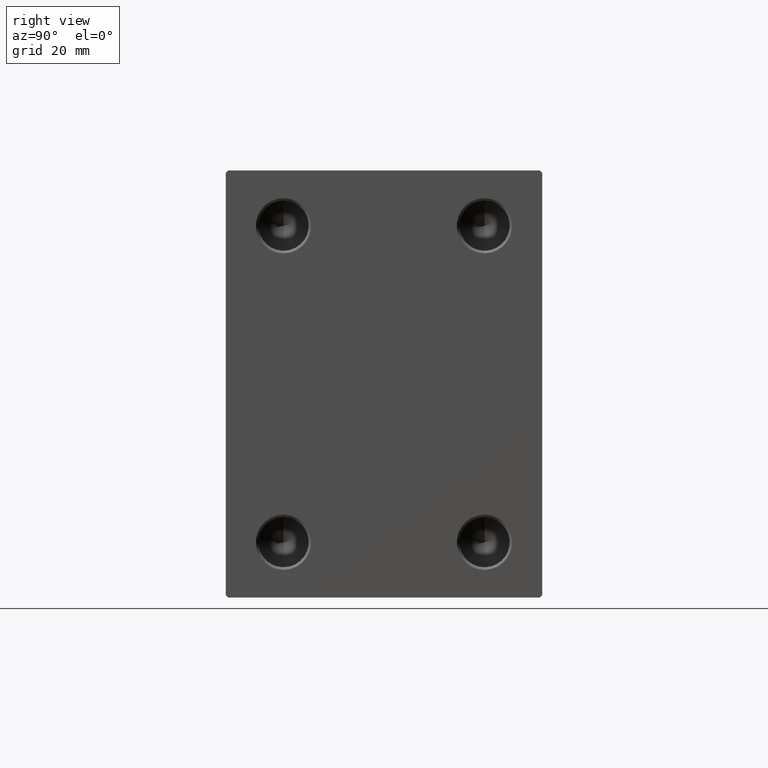
[diagram: clean part render]
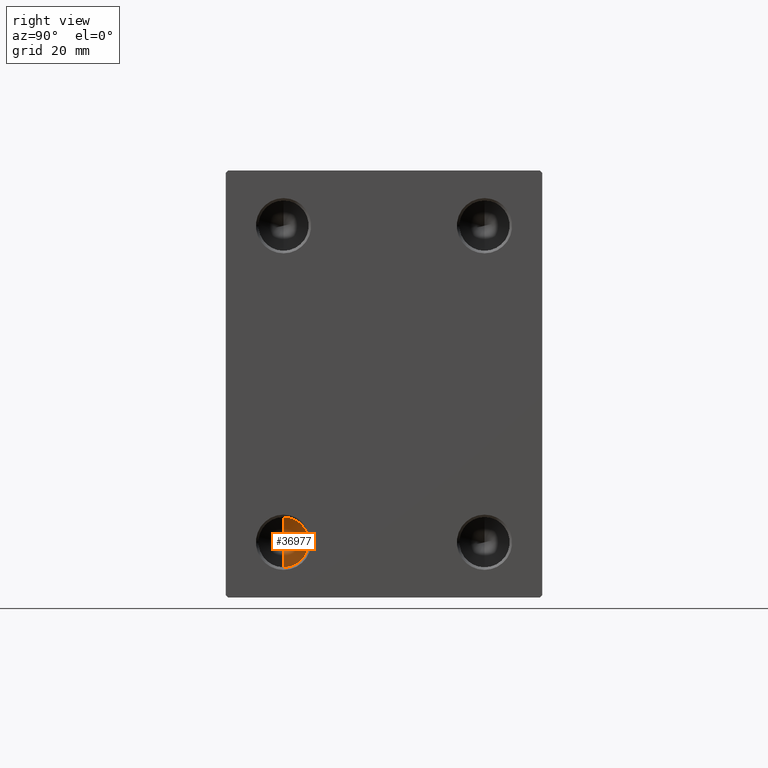
[diagram: same view with one face highlighted and labeled with its STEP entity id]
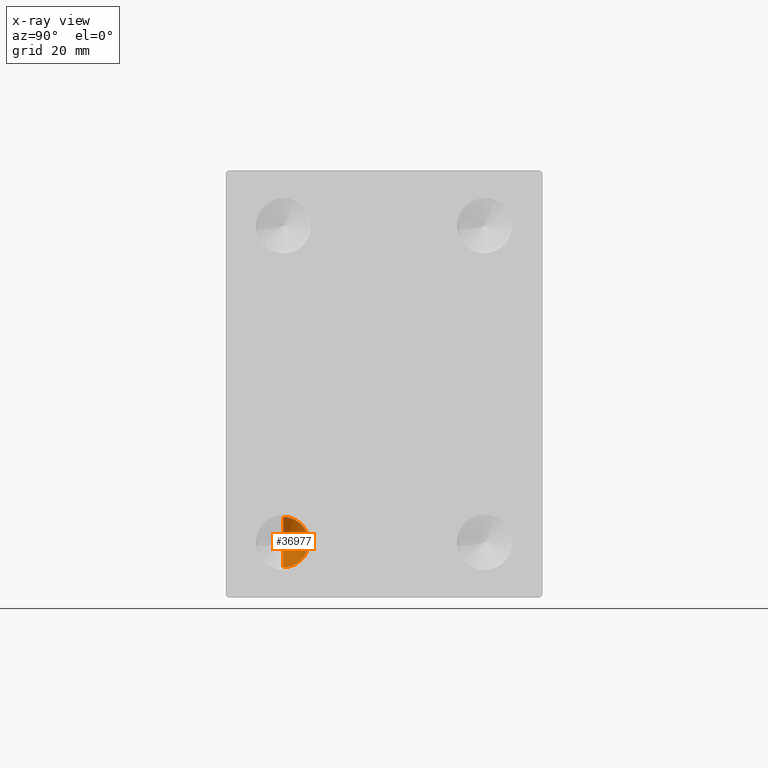
[diagram: x-ray of the same camera — body ghosted, the highlighted face saturated]
A machine part, right view. The second image highlights one B-rep face of the part: STEP entity #36977.
The next image is the same camera in x-ray: the body ghosted, the highlighted face saturated — about 0% of this face is hidden behind the body in this view.
In plain terms, the highlighted conical surface has half-angle 59 deg.
Its self-contained STEP definition (entity closure, byte-faithful):
#2299 = VERTEX_POINT ( 'NONE', #10956 ) ;
#3446 = VECTOR ( 'NONE', #11976, 1000.000000000000000 ) ;
#5605 = DIRECTION ( 'NONE',  ( 0.000000000000000000, 0.000000000000000000, 1.000000000000000000 ) ) ;
#5815 = DIRECTION ( 'NONE',  ( 0.5150380749100552658, -1.049727191138617833E-16, -0.8571673007021116675 ) ) ;
#7114 = EDGE_CURVE ( 'NONE', #2299, #17781, #22857, .T. ) ;
#10956 = CARTESIAN_POINT ( 'NONE',  ( 64.99569690486218576, -20.00000000000001066, -31.50000000000000000 ) ) ;
#11045 = CIRCLE ( 'NONE', #21069, 4.999999999999997335 ) ;
#11976 = DIRECTION ( 'NONE',  ( 0.5150380749100552658, 0.000000000000000000, 0.8571673007021116675 ) ) ;
#16519 = FACE_OUTER_BOUND ( 'NONE', #22805, .T. ) ;
#17781 = VERTEX_POINT ( 'NONE', #23586 ) ;
#19506 = CARTESIAN_POINT ( 'NONE',  ( 67.99999999999998579, -20.00000000000000355, -31.50000000000000000 ) ) ;
#19874 = ORIENTED_EDGE ( 'NONE', *, *, #26315, .F. ) ;
#20099 = CARTESIAN_POINT ( 'NONE',  ( 67.99999999999998579, -20.00000000000000355, -31.50000000000000000 ) ) ;
#21069 = AXIS2_PLACEMENT_3D ( 'NONE', #19506, #22864, #5605 ) ;
#22805 = EDGE_LOOP ( 'NONE', ( #30098, #36284, #19874 ) ) ;
#22857 = LINE ( 'NONE', #36547, #42161 ) ;
#22864 = DIRECTION ( 'NONE',  ( -1.000000000000000000, 0.000000000000000000, 0.000000000000000000 ) ) ;
#23339 = CONICAL_SURFACE ( 'NONE', #29064, 4.999999999999997335, 1.029744258676653201 ) ;
#23586 = CARTESIAN_POINT ( 'NONE',  ( 67.99999999999998579, -20.00000000000000355, -36.50000000000000000 ) ) ;
#23687 = DIRECTION ( 'NONE',  ( 0.000000000000000000, 0.000000000000000000, 1.000000000000000000 ) ) ;
#26315 = EDGE_CURVE ( 'NONE', #27785, #17781, #11045, .T. ) ;
#27785 = VERTEX_POINT ( 'NONE', #31013 ) ;
#29064 = AXIS2_PLACEMENT_3D ( 'NONE', #20099, #40511, #23687 ) ;
#30098 = ORIENTED_EDGE ( 'NONE', *, *, #41440, .F. ) ;
#31013 = CARTESIAN_POINT ( 'NONE',  ( 67.99999999999998579, -20.00000000000000355, -26.50000000000000355 ) ) ;
#35531 = LINE ( 'NONE', #41830, #3446 ) ;
#36284 = ORIENTED_EDGE ( 'NONE', *, *, #7114, .T. ) ;
#36547 = CARTESIAN_POINT ( 'NONE',  ( 67.99999999999998579, -20.00000000000000355, -36.50000000000000000 ) ) ;
#36977 = ADVANCED_FACE ( 'NONE', ( #16519 ), #23339, .F. ) ;
#40511 = DIRECTION ( 'NONE',  ( 1.000000000000000000, -0.000000000000000000, -0.000000000000000000 ) ) ;
#41440 = EDGE_CURVE ( 'NONE', #2299, #27785, #35531, .T. ) ;
#41830 = CARTESIAN_POINT ( 'NONE',  ( 67.99999999999998579, -20.00000000000000355, -26.50000000000000355 ) ) ;
#42161 = VECTOR ( 'NONE', #5815, 1000.000000000000000 ) ;